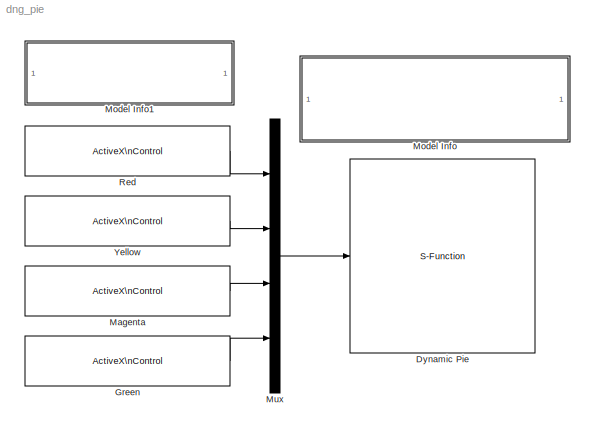
MODEL dng_pie
KIND model
BLOCK [S-Function] Dynamic Pie
  CopyFcn = ax_block CopyFcn
  DeleteFcn = ax_block('DeleteBlock',gcb);
  FunctionName = dng_pie_sfun
  LoadFcn = ax_block LoadFcn
  MaskCallbackString = ax_block Dirty||||ax_block Dirty|ax_block Dirty|ax_block Dirty|ax_block Dirty||ax_block('InBlockCallback');|ax_block('MoveBlockControl');|||
  MaskDescription = Displays ActiveX control in model. Use block border to move/resize block. Right-click on block to edit properties. This block works only on Windows platforms.
  MaskDisplay = disp(str)
  MaskEnableString = on,on,on,on,on,on,on,on,on,on,on,on,off,off
  MaskHelp = evalc('dnghelp')
  MaskIconFrame = on
  MaskIconOpaque = on
  MaskIconRotate = none
  MaskIconUnits = autoscale
  MaskInitialization = str=sprintf('(Initialization\\nFailed');\n[hActx,inputprops,outputprops,inblock,dialOut] = ax_block('ActiveXMaskInit',gcs,gcb);\nif isempty( hActx ) | strcmp(inblock,'off')\n  str = 'ActiveX';\nelse\n  str = '';\nend
  MaskPromptString = Program ID:|Connections:|Input property:|Output property:|Event on which to output:|Initialization command:|Other events and handlers:|Handle location (function returning control handle or block name):|Update command:|In-block control|Border|Dial Output Value:|ParentList|UpdateParam
  MaskStyleString = edit,popup(input|output|both|neither),edit,edit,edit,edit,edit,edit,edit,checkbox,checkbox,edit,edit,edit
  MaskTabNameString = ,,,,,,,,,,,,,
  MaskToolTipString = on,on,on,on,on,on,on,on,on,on,on,on,on,on
  MaskTunableValueString = off,off,off,off,off,off,off,off,off,off,on,on,on,on
  MaskType = ActiveX Block
  MaskValueString = mwpercent.percentctrl.1|input||||hActx.configuration='Percentage Indicator\\Pie Charts\\Dynamic Pie';||||on|on|0||0
  MaskVarAliasString = ,,,,,,,,,,,,,
  MaskVariables = progid=&1;connect=@2;input=&3;output=&4;dialOutEvent=&5;init=&6;eventstr=&7;init_fcn=&8;update=&9;inblock=&10;border=&11;dialOut=@12;parentList=&13;updateParam=@14;
  MaskVisibilityString = on,on,on,on,on,on,on,off,on,on,on,off,off,off
  ModelCloseFcn = ax_block('ModelClosing', gcb);
  MoveFcn = ax_block('MoveBlockControl',gcb);
  NameChangeFcn = ax_block('NameBlockChange',gcb);
  OpenFcn = ax_block('OpenFcn',gcbh);
  Parameters = hActx
  ParentCloseFcn = ax_block('DeleteControl',gcb);
  Ports = [1]
  PostSaveFcn = ax_block('SaveBlockControl');
  PreSaveFcn = ax_block('PreSaveFcn')
  Tag = 000
  UndoDeleteFcn = ax_block('UndeleteBlock',gcb);
  UserData = DataTag0
  UserDataPersistent = on
BLOCK [Reference] Green  REF=dnglibv1/ActiveX\nControl
  Ports = [0, 1]
  SourceBlock = dnglibv1/ActiveX\nControl
  SourceType = ActiveX Block
  UserData = DataTag1
  UserDataPersistent = on
  border = on
  connect = output
  dialOut = 448.979591836735
  dialOutEvent = Slide Change
  inblock = on
  init = hActx.configuration='Slider<path> Slider2';
  output = Value
  progid = mwslider.sliderctrl.1
  updateParam = 0
BLOCK [Reference] Magenta  REF=dnglibv1/ActiveX\nControl
  Ports = [0, 1]
  SourceBlock = dnglibv1/ActiveX\nControl
  SourceType = ActiveX Block
  UserData = DataTag2
  UserDataPersistent = on
  border = on
  connect = output
  dialOut = 505.668934240363
  dialOutEvent = Slide Change
  inblock = on
  init = hActx.configuration='Slider<path> Slider2';
  output = Value
  progid = mwslider.sliderctrl.1
  updateParam = 0
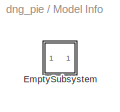
BLOCK [SubSystem] Model Info
  AncestorBlock = simulink/Model-Wide\nUtilities/Model Info
  CopyFcn = slcm CopyBlock;
  DeleteFcn = slcm Cancel;
  InitFcn = slcm('UpdateAllCMBlocksInThisModelInit')
  LoadFcn = slcm LoadBlock;
  MaskCallbackString = ||||||||||||||||||||||||||||||
  MaskDescription = This block allows revision control information to be displayed within the model.
  MaskDisplay = text(str2num(LeftAlignmentValue), 0.5, MaskDisplayString, 'HorizontalAlignment', HorizontalTextAlignment)\n
  MaskEnableString = on,on,on,on,on,on,on,on,on,on,on,on,on,on,on,on,on,on,on,on,on,on,on,on,on,on,on,on,on,on,on
  MaskIconFrame = on
  MaskIconOpaque = on
  MaskIconRotate = none
  MaskIconUnits = normalized
  MaskPromptString = InitialSaveTempField|InitialBlockCM|BlockCM|Frame|SaveTempField|DisplayStringWithTags|MaskDisplayString|HorizontalTextAlignment|LeftAlignmentValue|SourceBlockDiagram|TagMaxNumber|CMTag1|CMTag2|CMTag3|CMTag4|CMTag5|CMTag6|CMTag7|CMTag8|CMTag9|CMTag10|CMTag11|CMTag12|CMTag13|CMTag14|CMTag15|CMTag16|CMTag17|CMTag18|CMTag19|CMTag20
  MaskSelfModifiable = on
  MaskStyleString = edit,edit,edit,edit,edit,edit,edit,edit,edit,edit,edit,edit,edit,edit,edit,edit,edit,edit,edit,edit,edit,edit,edit,edit,edit,edit,edit,edit,edit,edit,edit
  MaskTabNameString = ,,,,,,,,,,,,,,,,,,,,,,,,,,,,,,
  MaskToolTipString = on,on,on,on,on,on,on,on,on,on,on,on,on,on,on,on,on,on,on,on,on,on,on,on,on,on,on,on,on,on,on
  MaskTunableValueString = on,on,on,on,on,on,on,on,on,on,on,on,on,on,on,on,on,on,on,on,on,on,on,on,on,on,on,on,on,on,on
  MaskType = CMBlock
  MaskValueString = |none|none|on||This model uses an S-function to manipulate\nthe portions of the Dynamic Pie block.\n\nIt normalizes the slider values to fill the pie.|This model uses an S-function to manipulate\\nthe portions of the Dynamic Pie block.\\n\\nIt normalizes the slider values to fill the pie.|Left|0.02|dng_pie|20||||||||||||||||||||
  MaskVarAliasString = ,,,,,,,,,,,,,,,,,,,,,,,,,,,,,,
  MaskVariables = InitialSaveTempField=&1;InitialBlockCM=&2;BlockCM=&3;Frame=&4;SaveTempField=&5;DisplayStringWithTags=&6;MaskDisplayString=&7;HorizontalTextAlignment=&8;LeftAlignmentValue=&9;SourceBlockDiagram=&10;TagMaxNumber=@11;CMTag1=&12;CMTag2=&13;CMTag3=&14;CMTag4=&15;CMTag5=&16;CMTag6=&17;CMTag7=&18;CMTag8=&19;CMTag9=&20;CMTag10=&21;CMTag11=&22;CMTag12=&23;CMTag13=&24;CMTag14=&25;CMTag15=&26;CMTag16=&27;CMT...<+45ch>
  MaskVisibilityString = off,off,off,off,off,off,off,off,off,off,off,off,off,off,off,off,off,off,off,off,off,off,off,off,off,off,off,off,off,off,off
  NameChangeFcn = slcm Rename;
  OpenFcn = slcm
  Ports = []
  PostSaveFcn = slcm('UpdateAllCMBlocksInThisModel')
  TreatAsAtomicUnit = off
BLOCK [SubSystem] Model Info/EmptySubsystem
  Ports = []
  TreatAsAtomicUnit = off
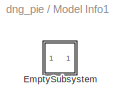
BLOCK [SubSystem] Model Info1
  AncestorBlock = simulink/Model-Wide\nUtilities/Model Info
  CopyFcn = slcm CopyBlock;
  DeleteFcn = slcm Cancel;
  InitFcn = slcm('UpdateAllCMBlocksInThisModelInit')
  LoadFcn = slcm LoadBlock;
  MaskCallbackString = ||||||||||||||||||||||||||||||
  MaskDescription = This block allows revision control information to be displayed within the model.
  MaskDisplay = text(str2num(LeftAlignmentValue), 0.5, MaskDisplayString, 'HorizontalAlignment', HorizontalTextAlignment)\n
  MaskEnableString = on,on,on,on,on,on,on,on,on,on,on,on,on,on,on,on,on,on,on,on,on,on,on,on,on,on,on,on,on,on,on
  MaskIconFrame = on
  MaskIconOpaque = on
  MaskIconRotate = none
  MaskIconUnits = normalized
  MaskPromptString = InitialSaveTempField|InitialBlockCM|BlockCM|Frame|SaveTempField|DisplayStringWithTags|MaskDisplayString|HorizontalTextAlignment|LeftAlignmentValue|SourceBlockDiagram|TagMaxNumber|CMTag1|CMTag2|CMTag3|CMTag4|CMTag5|CMTag6|CMTag7|CMTag8|CMTag9|CMTag10|CMTag11|CMTag12|CMTag13|CMTag14|CMTag15|CMTag16|CMTag17|CMTag18|CMTag19|CMTag20
  MaskSelfModifiable = on
  MaskStyleString = edit,edit,edit,edit,edit,edit,edit,edit,edit,edit,edit,edit,edit,edit,edit,edit,edit,edit,edit,edit,edit,edit,edit,edit,edit,edit,edit,edit,edit,edit,edit
  MaskTabNameString = ,,,,,,,,,,,,,,,,,,,,,,,,,,,,,,
  MaskToolTipString = on,on,on,on,on,on,on,on,on,on,on,on,on,on,on,on,on,on,on,on,on,on,on,on,on,on,on,on,on,on,on
  MaskTunableValueString = on,on,on,on,on,on,on,on,on,on,on,on,on,on,on,on,on,on,on,on,on,on,on,on,on,on,on,on,on,on,on
  MaskType = CMBlock
  MaskValueString = |none|none|on||Run the simulation and then\nmove the sliders with your mouse.|Run the simulation and then\\nmove the sliders with your mouse.|Left|0.02|dng_pie|20||||||||||||||||||||
  MaskVarAliasString = ,,,,,,,,,,,,,,,,,,,,,,,,,,,,,,
  MaskVariables = InitialSaveTempField=&1;InitialBlockCM=&2;BlockCM=&3;Frame=&4;SaveTempField=&5;DisplayStringWithTags=&6;MaskDisplayString=&7;HorizontalTextAlignment=&8;LeftAlignmentValue=&9;SourceBlockDiagram=&10;TagMaxNumber=@11;CMTag1=&12;CMTag2=&13;CMTag3=&14;CMTag4=&15;CMTag5=&16;CMTag6=&17;CMTag7=&18;CMTag8=&19;CMTag9=&20;CMTag10=&21;CMTag11=&22;CMTag12=&23;CMTag13=&24;CMTag14=&25;CMTag15=&26;CMTag16=&27;CMT...<+45ch>
  MaskVisibilityString = off,off,off,off,off,off,off,off,off,off,off,off,off,off,off,off,off,off,off,off,off,off,off,off,off,off,off,off,off,off,off
  NameChangeFcn = slcm Rename;
  OpenFcn = slcm
  Ports = []
  PostSaveFcn = slcm('UpdateAllCMBlocksInThisModel')
  TreatAsAtomicUnit = off
BLOCK [SubSystem] Model Info1/EmptySubsystem
  Ports = []
  TreatAsAtomicUnit = off
BLOCK [Mux] Mux
  DisplayOption = bar
  Ports = [4, 1]
BLOCK [Reference] Red  REF=dnglibv1/ActiveX\nControl
  Ports = [0, 1]
  SourceBlock = dnglibv1/ActiveX\nControl
  SourceType = ActiveX Block
  UserData = DataTag3
  UserDataPersistent = on
  border = on
  connect = output
  dialOut = 687.074829931973
  dialOutEvent = Slide Change
  inblock = on
  init = hActx.configuration='Slider<path> Slider2';
  output = Value
  progid = mwslider.sliderctrl.1
  updateParam = 0
BLOCK [Reference] Yellow  REF=dnglibv1/ActiveX\nControl
  Ports = [0, 1]
  SourceBlock = dnglibv1/ActiveX\nControl
  SourceType = ActiveX Block
  UserData = DataTag4
  UserDataPersistent = on
  border = on
  connect = output
  dialOut = 511.337868480726
  dialOutEvent = Slide Change
  inblock = on
  init = hActx.configuration='Slider<path> Slider2';
  output = Value
  progid = mwslider.sliderctrl.1
  updateParam = 0
LINE Green:1 -> Mux:4
LINE Magenta:1 -> Mux:3
LINE Mux:1 -> Dynamic Pie:1
LINE Red:1 -> Mux:1
LINE Yellow:1 -> Mux:2
note: 4 file-system paths scrubbed to <path> (not preserved elsewhere — flat text is the only slx artifact)
